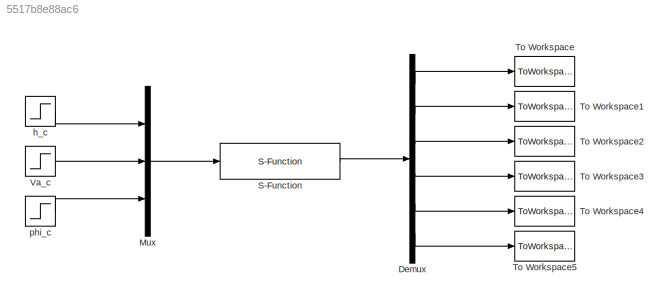
MODEL slx_5517b8e88ac6
KIND model
CONFIG AbsTol = auto
CONFIG EnableMultiTasking = off
CONFIG FixedStep = P.Ts
CONFIG MaxStep = auto
CONFIG MinStep = auto
CONFIG RelTol = 1e-3
CONFIG SampleTimeConstraint = Unconstrained
CONFIG Solver = ode4
CONFIG SolverName = ode4
CONFIG StartTime = 0.0
CONFIG StopTime = 50
BLOCK [Demux] Demux
  DisplayOption = bar
  Outputs = 6
  Ports = [1, 6]
BLOCK [Mux] Mux
  DisplayOption = bar
  Inputs = 3
  Ports = [3, 1]
BLOCK [S-Function] S-Function
  EnableBusSupport = off
  FunctionName = simple_MAV_alternative
  Parameters = P
  Ports = [1, 1]
  SFcnIsStateOwnerBlock = off
  SFunctionDeploymentMode = off
BLOCK [ToWorkspace] To Workspace
  FixptAsFi = on
  MaxDataPoints = inf
  Ports = [1]
  SampleTime = -1
  SaveFormat = Timeseries
  VariableName = pn
BLOCK [ToWorkspace] To Workspace1
  FixptAsFi = on
  MaxDataPoints = inf
  Ports = [1]
  SampleTime = -1
  SaveFormat = Timeseries
  VariableName = pe
BLOCK [ToWorkspace] To Workspace2
  FixptAsFi = on
  MaxDataPoints = inf
  Ports = [1]
  SampleTime = -1
  SaveFormat = Timeseries
  VariableName = psi
BLOCK [ToWorkspace] To Workspace3
  FixptAsFi = on
  MaxDataPoints = inf
  Ports = [1]
  SampleTime = -1
  SaveFormat = Timeseries
  VariableName = h
BLOCK [ToWorkspace] To Workspace4
  FixptAsFi = on
  MaxDataPoints = inf
  Ports = [1]
  SampleTime = -1
  SaveFormat = Timeseries
  VariableName = Va
BLOCK [ToWorkspace] To Workspace5
  FixptAsFi = on
  MaxDataPoints = inf
  Ports = [1]
  SampleTime = -1
  SaveFormat = Timeseries
  VariableName = phi
BLOCK [Step] Va_c
  After = 20
  SampleTime = 0
  Time = 0
BLOCK [Step] h_c
  After = 100
  SampleTime = 0
  Time = 0
BLOCK [Step] phi_c
  After = 5*pi/180
  SampleTime = 0
  Time = 0
LINE Demux:1 -> To Workspace:1
LINE Demux:2 -> To Workspace1:1
LINE Demux:3 -> To Workspace2:1
LINE Demux:4 -> To Workspace3:1
LINE Demux:5 -> To Workspace4:1
LINE Demux:6 -> To Workspace5:1
LINE Mux:1 -> S-Function:1
LINE S-Function:1 -> Demux:1
LINE Va_c:1 -> Mux:2
LINE h_c:1 -> Mux:1
LINE phi_c:1 -> Mux:3
